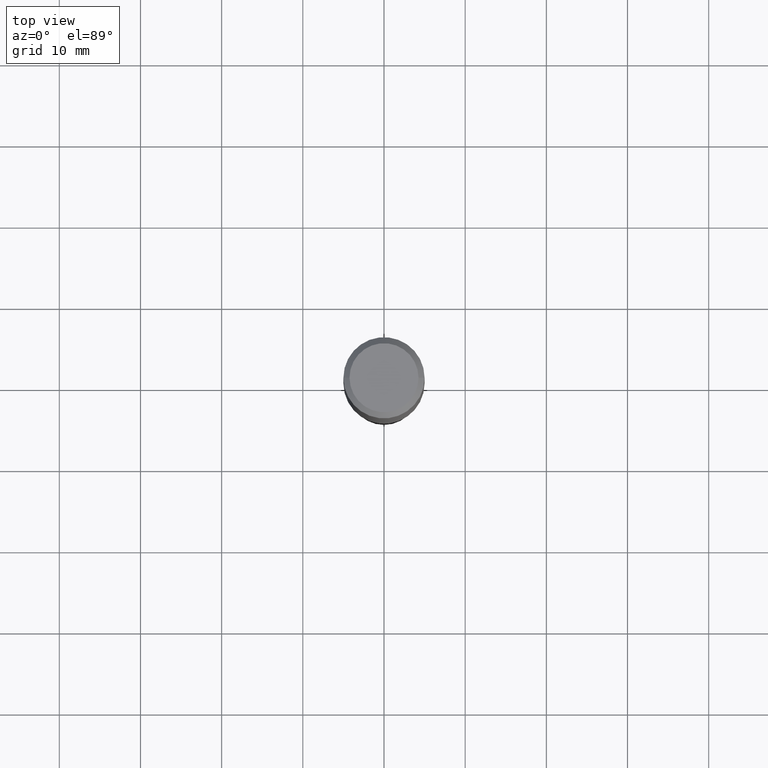
[diagram: clean part render]
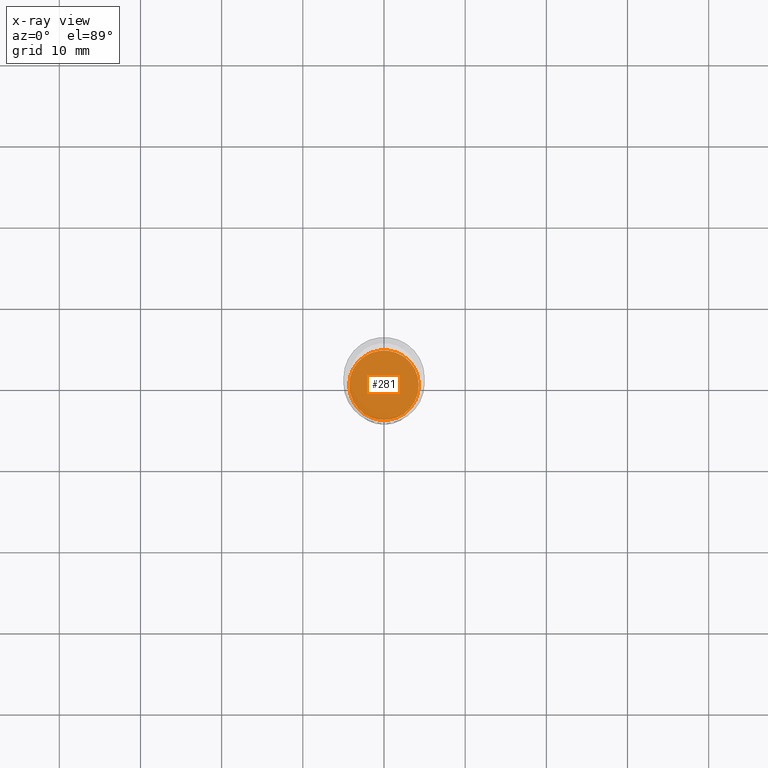
[diagram: x-ray — body ghosted, one internal face saturated and labeled with its STEP entity id]
A machine part, top view, then the same camera in x-ray: the body is ghosted and one INTERNAL B-rep face — a face not visible from any outside direction — is saturated and labeled: STEP entity #281.
In plain terms, the highlighted planar face has unit normal (-0, 0, 1).
Its self-contained STEP definition (entity closure, byte-faithful):
#37 = CARTESIAN_POINT ( 'NONE',  ( 5.198822135068982087E-29, -7.422540178246643119E-15, -2.125899999999999679 ) ) ;
#39 = VERTEX_POINT ( 'NONE', #229 ) ;
#136 = CARTESIAN_POINT ( 'NONE',  ( 5.198822135068982087E-29, -7.422540178246643119E-15, -2.125899999999999679 ) ) ;
#148 = DIRECTION ( 'NONE',  ( -2.445468806185136597E-29, 3.491481338843145583E-15, 1.000000000000000000 ) ) ;
#151 = FACE_OUTER_BOUND ( 'NONE', #348, .T. ) ;
#177 = ORIENTED_EDGE ( 'NONE', *, *, #197, .F. ) ;
#182 = CARTESIAN_POINT ( 'NONE',  ( 5.198822135068982087E-29, -7.422540178246643119E-15, -2.125899999999999679 ) ) ;
#187 = DIRECTION ( 'NONE',  ( -2.445468806185136597E-29, 3.491481338843145583E-15, 1.000000000000000000 ) ) ;
#193 = AXIS2_PLACEMENT_3D ( 'NONE', #182, #187, #267 ) ;
#197 = EDGE_CURVE ( 'NONE', #39, #266, #283, .T. ) ;
#229 = CARTESIAN_POINT ( 'NONE',  ( -0.1688000000000000334, -6.220494813109482370E-15, -2.125899999999999679 ) ) ;
#266 = VERTEX_POINT ( 'NONE', #289 ) ;
#267 = DIRECTION ( 'NONE',  ( 1.000000000000000000, -6.982962677686266711E-15, 0.000000000000000000 ) ) ;
#269 = DIRECTION ( 'NONE',  ( 1.000000000000000000, -6.982962677686265922E-15, 4.876176775795935793E-29 ) ) ;
#281 = ADVANCED_FACE ( 'NONE', ( #151 ), #379, .F. ) ;
#283 = CIRCLE ( 'NONE', #193, 0.1688000000000000334 ) ;
#289 = CARTESIAN_POINT ( 'NONE',  ( 0.1688000000000000334, -8.601264278240084927E-15, -2.125899999999999679 ) ) ;
#300 = DIRECTION ( 'NONE',  ( -2.438088387897960049E-29, 3.491481338843145188E-15, 1.000000000000000000 ) ) ;
#311 = CIRCLE ( 'NONE', #353, 0.1688000000000000334 ) ;
#341 = AXIS2_PLACEMENT_3D ( 'NONE', #37, #300, #269 ) ;
#348 = EDGE_LOOP ( 'NONE', ( #377, #177 ) ) ;
#353 = AXIS2_PLACEMENT_3D ( 'NONE', #136, #148, #487 ) ;
#377 = ORIENTED_EDGE ( 'NONE', *, *, #397, .F. ) ;
#379 = PLANE ( 'NONE',  #341 ) ;
#397 = EDGE_CURVE ( 'NONE', #266, #39, #311, .T. ) ;
#487 = DIRECTION ( 'NONE',  ( 1.000000000000000000, -6.982962677686266711E-15, 0.000000000000000000 ) ) ;